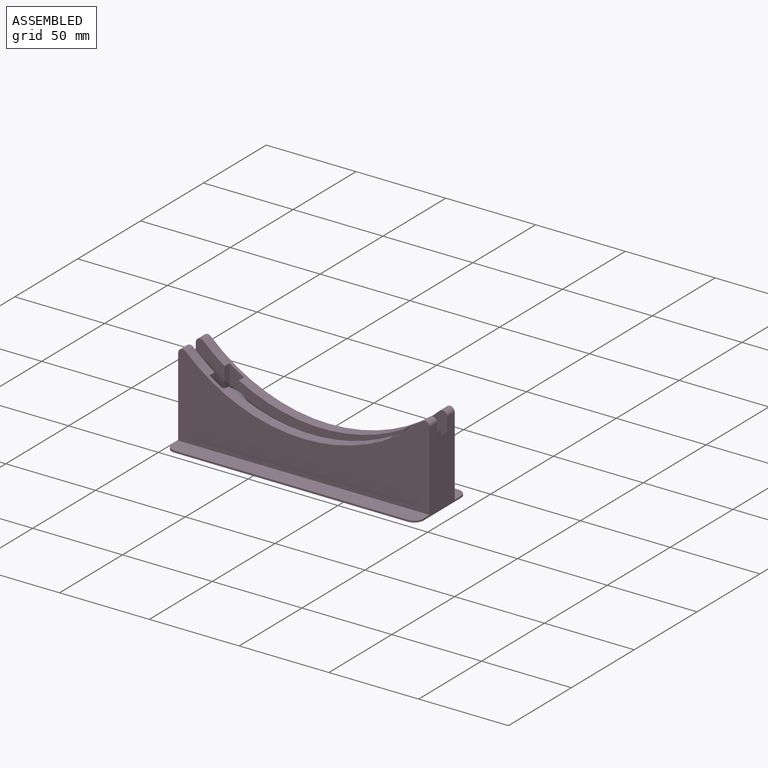
[diagram: assembled view]
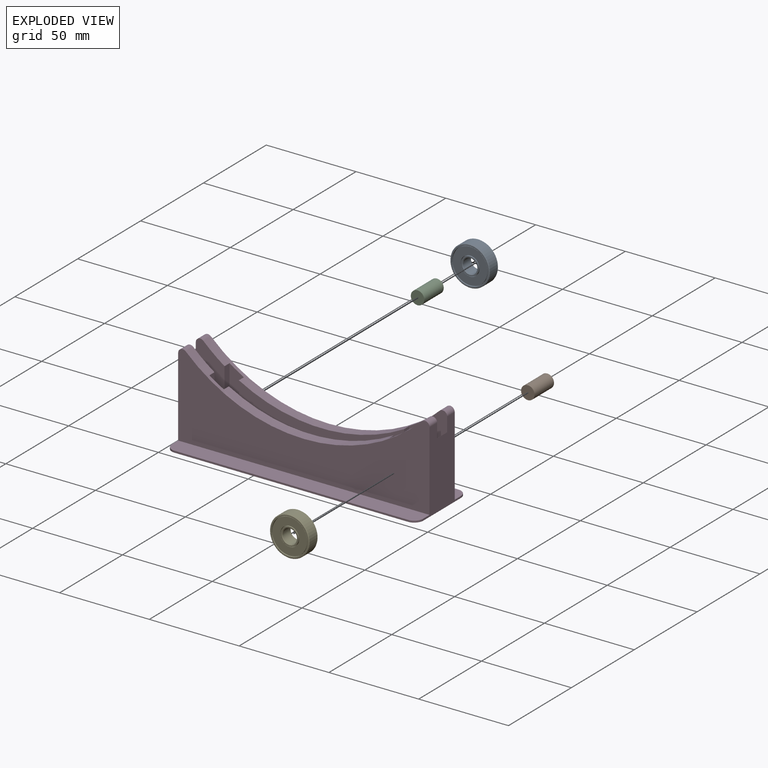
[diagram: exploded view]
GUIDED TOUR — MATED ASSEMBLY (Onshape document b730da43200ee290223126f6, AutoMate assembly b730da43200ee290223126f6_57c0fca6e5a38c80ff8bf6b0_5da7fbd9121deaefb79229ab_default)

This assembly has 5 components, labeled P0..P4 below (a component is one placed occurrence of a part; the same part can appear more than once), held together by 4 mates. A mate is a constraint between two components; its type names the relative motion it leaves free:
  CYLINDRICAL — leaves both rotation about and translation along the listed axis free.
Axis/direction vectors are unit vectors and 'through' points are millimeter coordinates, both in the assembly's world frame.

MATES
  1. CYLINDRICAL "Cylindrical 4": P1 <-> P3, axis (0.000, 1.000, 0.000) through (74.11, 27.88, 2.51) mm
  2. CYLINDRICAL "Cylindrical 3": P2 <-> P3, axis (0.000, 1.000, 0.000) through (-25.89, 27.88, 2.51) mm
  3. CYLINDRICAL "Cylindrical 1": P0 <-> P3, axis (0.000, 1.000, 0.000) through (-25.89, 23.88, 2.51) mm
  4. CYLINDRICAL "Cylindrical 2": P4 <-> P3, axis (0.000, -1.000, 0.000) through (74.11, 15.88, 2.51) mm

ASSEMBLY ORDER
  1. P3 — the base component [order verified]
  2. P4 [order verified]
  3. P0 [order verified]
  4. P2 [order verified]
  5. P1 [order verified]
Order-tag legend:
  [order verified] — this step's position reverses a verified removal order: the component was checked to insert without passing through the ones already placed.

Of the 5 components, 3 carry the full construction recipe — the FeatureScript program that regenerates the part's solid from scratch; the rest are supplied as boundary geometry only.
Each toured component is shown spotlighted twice — in the assembled view, then in the exploded view, where a leader line traces a displaced component back to its assembled socket (saturated green if recipe-attached, orange if geometry-only; every other component desaturated gray) — followed by its recipe or geometry summary and the mates that hold it.
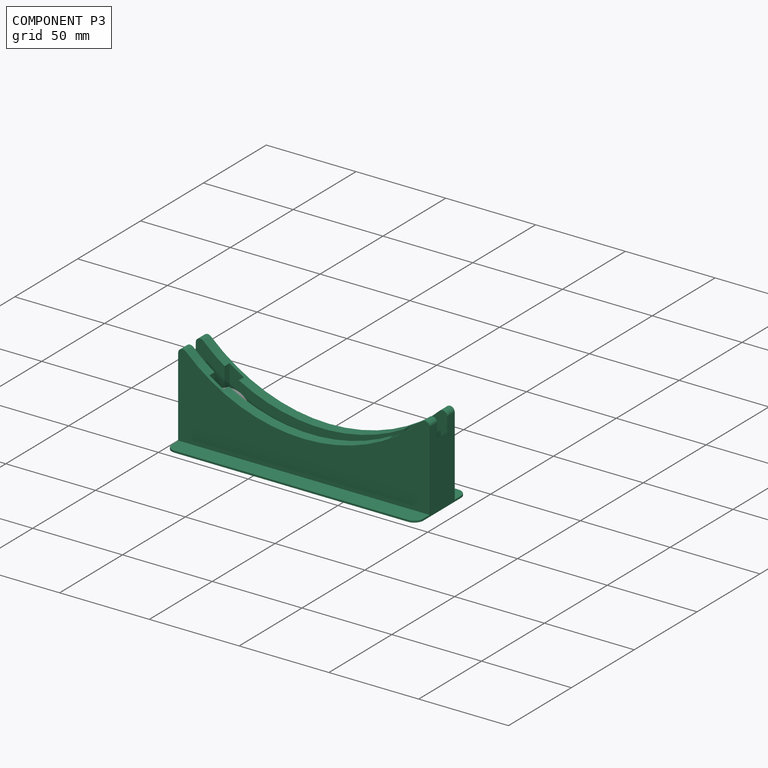
[diagram: component P3 — assembled]
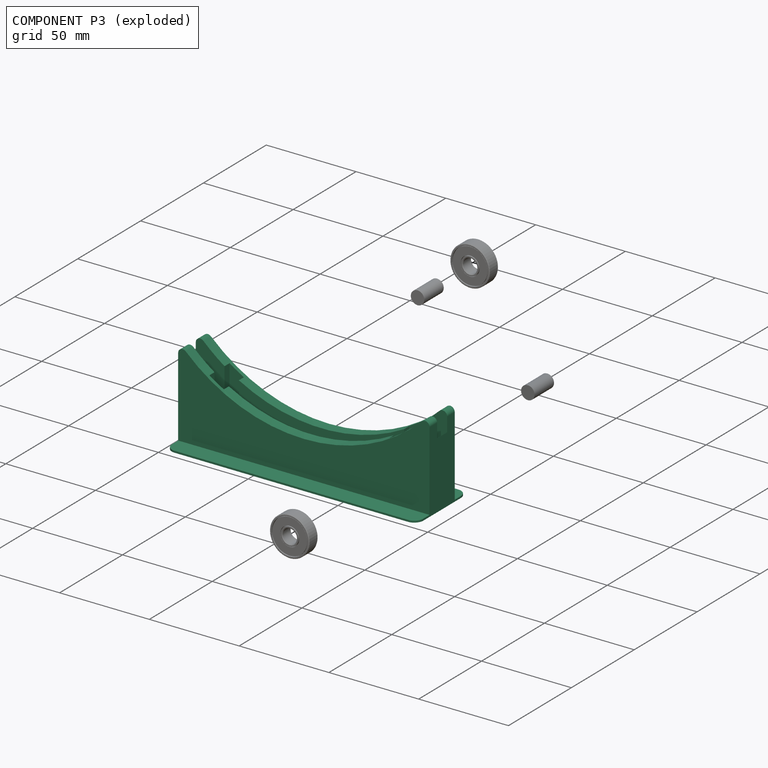
[diagram: component P3 — exploded]
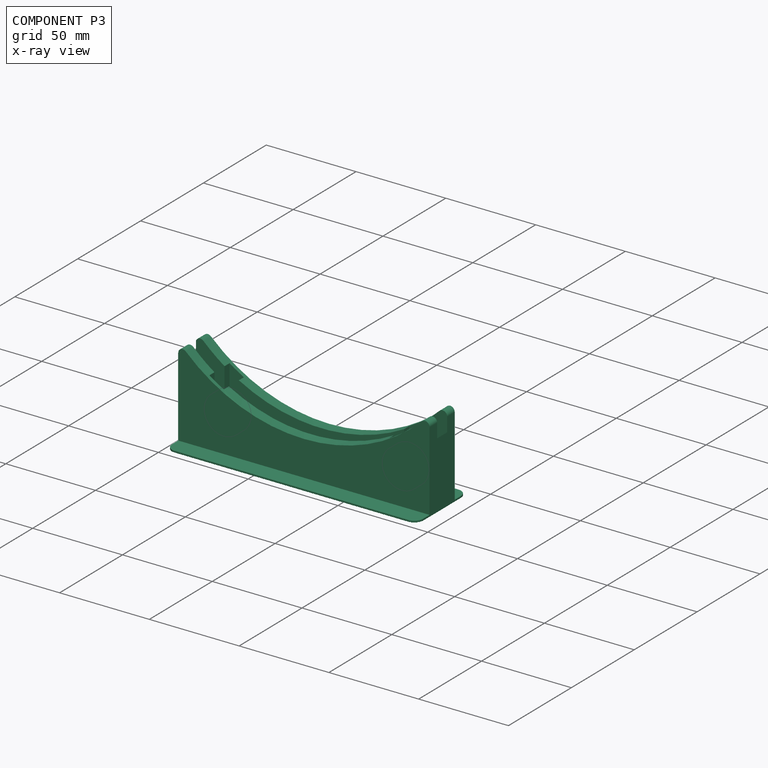
[diagram: component P3 — x-ray view]
COMPONENT P3 — recipe-attached (CADFS 00260634, mesh-verified: the recipe's output STEP matches this component's geometry to below the mesh-comparison resolution (tessellation chordal tolerance ~0.23 mm)).
Held by: CYLINDRICAL mate "Cylindrical 4" to P1; CYLINDRICAL mate "Cylindrical 3" to P2; CYLINDRICAL mate "Cylindrical 1" to P0; CYLINDRICAL mate "Cylindrical 2" to P4.
Construction recipe (FeatureScript — the CAD program that rebuilds this solid; sketch coordinates are in the units given by the * unit suffixes, e.g. mm):

FeatureScript 1511;
import(path : "onshape/std/geometry.fs", version : "1511.0");
import(path : "onshape/std/common.fs", version : "1511.0");
const mm = millimeter;
const VERTEX = EntityType.VERTEX;
const EDGE = EntityType.EDGE;
const FACE = EntityType.FACE;
const BODY = EntityType.BODY;
function v(x, y){return vector(x, y);}
function OD(order){return orderDisambiguation(order);}
function OSD(set){return originalSetDisambiguation(set);}
function TD(topology){return topologyDisambiguation(topology);}
function TDD(query){return trueDependencyDisambiguation(query);}
function sQuery(a, b, c) {return sketchEntityQuery(a, b, c);}

annotation { "Feature Type Name" : "Feature", "Feature Type Description" : "" }
export const myFeature = defineFeature(function(context is Context, id is Id, definition is map)
    precondition{}
    {
        {
            var Q0;
            Q0=qCreatedBy(makeId("Front.planeOp"),FACE);
            var sketch = newSketch(context, id + "F0", { "sketchPlane" : qUnion([Q0])});
            skCircle(sketch, "E0", {"center": v(0, 115) * mm, "radius": 100 * mm, "construction": true});
            skLineSegment(sketch, "E1.top", {"start": v(-70, 0) * mm, "end": v(70, 0) * mm});
            skLineSegment(sketch, "E1.left", {"start": v(-70, 50.77) * mm, "end": v(-70, 0) * mm});
            skLineSegment(sketch, "E1.right", {"start": v(70, 50.77) * mm, "end": v(70, 0) * mm});
            skPoint(sketch, "E1.middle", {"position": v(0, 25.39) * mm});
            skArc(sketch, "E2", {"start": v(-70, 50.77) * mm, "mid": v(0, 20) * mm, "end": v(70, 50.77) * mm});
            skCircle(sketch, "E3", {"center": v(-50, 15.9) * mm, "radius": 11 * mm, "construction": true});
            skSolve(sketch);
        }
        {
            var Q0;
            Q0=makeQuery(id+"F0.imprint","IMPRINT",FACE,{"disambiguationData":[TD([[makeQuery(id+"F0.imprint","IMPRINT",EDGE,{"derivedFrom":sQuery(id+"F0.wireOp",EDGE,"E1.top")}),1.0]])]});
            extrude(context, id + "F1", {"entities" : qUnion([Q0]), "endBound" : BoundingType.SYMMETRIC, "depth" : 20 * mm, "hasSecondDirection" : true, "secondDirectionOppositeDirection" : true, "secondDirectionDepth" : 7.5 * mm});
        }
        {
            var Q0;
            Q0=qCreatedBy(makeId("Front.planeOp"),FACE);
            var sketch = newSketch(context, id + "F2", { "sketchPlane" : qUnion([Q0])});
            skCircle(sketch, "E4", {"center": v(0, 115) * mm, "radius": 100 * mm, "construction": true});
            skCircle(sketch, "E5", {"center": v(0, 115) * mm, "radius": 105 * mm});
            skSolve(sketch);
        }
        {
            var Q0;
            Q0=makeQuery(id+"F2.imprint","IMPRINT",FACE,{"disambiguationData":[TD([[makeQuery(id+"F2.imprint","IMPRINT",EDGE,{"derivedFrom":sQuery(id+"F2.wireOp",EDGE,"E5")}),1.0]])]});
            extrude(context, id + "F3", {"entities" : qUnion([Q0]), "operationType" : NewBodyOperationType.REMOVE, "oppositeDirection" : true, "depth" : 4 * mm, "hasSecondDirection" : true, "secondDirectionOppositeDirection" : false, "secondDirectionDepth" : 4 * mm});
        }
        {
            var Q0;
            {var subQ0=sQuery(id+"F0.wireOp",EDGE,"E2");var subQ1=sQuery(id+"F0.wireOp",EDGE,"E1.left");Q0=makeQuery(id+"F3.boolean.opBoolean","SPLIT",EDGE,{"disambiguationData":[TD([makeQuery(id+"F3.opExtrude","CAP_FACE",FACE,{"disambiguationData":[OSD([sQuery(id+"F2.wireOp",EDGE,"E5")])],"isStart":false})])],"derivedFrom":makeQuery(id+"F1.opExtrude","SWEPT_EDGE",EDGE,{"disambiguationData":[OSD([subQ1,subQ0])]})});}
            var Q1;
            {var subQ0=sQuery(id+"F0.wireOp",EDGE,"E2");var subQ1=sQuery(id+"F0.wireOp",EDGE,"E1.left");Q1=makeQuery(id+"F3.boolean.opBoolean","SPLIT",EDGE,{"disambiguationData":[TD([makeQuery(id+"F3.opExtrude","CAP_FACE",FACE,{"disambiguationData":[OSD([sQuery(id+"F2.wireOp",EDGE,"E5")])],"isStart":true})])],"derivedFrom":makeQuery(id+"F1.opExtrude","SWEPT_EDGE",EDGE,{"disambiguationData":[OSD([subQ1,subQ0])]})});}
            var Q2;
            {var subQ0=sQuery(id+"F0.wireOp",EDGE,"E2");var subQ1=sQuery(id+"F0.wireOp",EDGE,"E1.right");Q2=makeQuery(id+"F3.boolean.opBoolean","SPLIT",EDGE,{"disambiguationData":[TD([makeQuery(id+"F3.opExtrude","CAP_FACE",FACE,{"disambiguationData":[OSD([sQuery(id+"F2.wireOp",EDGE,"E5")])],"isStart":false})])],"derivedFrom":makeQuery(id+"F1.opExtrude","SWEPT_EDGE",EDGE,{"disambiguationData":[OSD([subQ1,subQ0])]})});}
            var Q3;
            {var subQ0=sQuery(id+"F0.wireOp",EDGE,"E2");var subQ1=sQuery(id+"F0.wireOp",EDGE,"E1.right");Q3=makeQuery(id+"F3.boolean.opBoolean","SPLIT",EDGE,{"disambiguationData":[TD([makeQuery(id+"F3.opExtrude","CAP_FACE",FACE,{"disambiguationData":[OSD([sQuery(id+"F2.wireOp",EDGE,"E5")])],"isStart":true})])],"derivedFrom":makeQuery(id+"F1.opExtrude","SWEPT_EDGE",EDGE,{"disambiguationData":[OSD([subQ1,subQ0])]})});}
            fillet(context, id + "F4", {"entities" : qUnion([Q0, Q1, Q2, Q3]), "radius" : 2.5 * mm, "tangentPropagation" : true, "allowEdgeOverflow" : false});
        }
        {
            var Q0;
            Q0=qCreatedBy(makeId("Front.planeOp"),FACE);
            var sketch = newSketch(context, id + "F5", { "sketchPlane" : qUnion([Q0])});
            skArc(sketch, "E6", {"start": v(-62, 15.9) * mm, "mid": v(-50, 3.9) * mm, "end": v(-38, 15.9) * mm});
            skCircle(sketch, "E7", {"center": v(0, 115) * mm, "radius": 100 * mm, "construction": true});
            skCircle(sketch, "E8", {"center": v(-50, 15.9) * mm, "radius": 11 * mm, "construction": true});
            skLineSegment(sketch, "E9.bottom", {"start": v(-62, 15.9) * mm, "end": v(-61, 15.9) * mm});
            skLineSegment(sketch, "E9.top", {"start": v(-62, 43.02) * mm, "end": v(-38, 43.02) * mm});
            skLineSegment(sketch, "E9.left", {"start": v(-62, 15.9) * mm, "end": v(-62, 43.02) * mm});
            skLineSegment(sketch, "E9.right", {"start": v(-38, 15.9) * mm, "end": v(-38, 43.02) * mm});
            skPoint(sketch, "E9.middle", {"position": v(-50, 29.46) * mm});
            skLineSegment(sketch, "E10.trimOffspring", {"start": v(-39, 15.9) * mm, "end": v(-38, 15.9) * mm});
            skLineSegment(sketch, "E11.MirrorCS", {"start": v(39, 15.9) * mm, "end": v(38, 15.9) * mm});
            skLineSegment(sketch, "E12.MirrorCS", {"start": v(62, 15.9) * mm, "end": v(61, 15.9) * mm});
            skArc(sketch, "E13.MirrorCS", {"start": v(62, 15.9) * mm, "mid": v(50, 3.9) * mm, "end": v(38, 15.9) * mm});
            skPoint(sketch, "E14.MirrorP", {"position": v(50, 29.46) * mm});
            skLineSegment(sketch, "E15.MirrorCS", {"start": v(38, 15.9) * mm, "end": v(38, 43.02) * mm});
            skLineSegment(sketch, "E16.MirrorCS", {"start": v(62, 43.02) * mm, "end": v(38, 43.02) * mm});
            skLineSegment(sketch, "E17.MirrorCS", {"start": v(62, 15.9) * mm, "end": v(62, 43.02) * mm});
            skCircle(sketch, "E18.MirrorC", {"center": v(50, 15.9) * mm, "radius": 11 * mm, "construction": true});
            skSolve(sketch);
        }
        {
            var Q0;
            Q0 = qSketchRegion(id + "F5", true);
            extrude(context, id + "F6", {"entities" : qUnion([Q0]), "operationType" : NewBodyOperationType.REMOVE, "endBound" : BoundingType.SYMMETRIC, "oppositeDirection" : true, "depth" : 8 * mm});
        }
        {
            var Q0;
            Q0=makeQuery(id+"F1.opExtrude","CAP_FACE",FACE,{"disambiguationData":[OSD([sQuery(id+"F0.wireOp",EDGE,"E1.top"),sQuery(id+"F0.wireOp",EDGE,"E1.left"),sQuery(id+"F0.wireOp",EDGE,"E1.right"),sQuery(id+"F0.wireOp",EDGE,"E2")])],"isStart":false});
            var sketch = newSketch(context, id + "F7", { "sketchPlane" : qUnion([Q0])});
            skArc(sketch, "E19", {"start": v(-54, 15.9) * mm, "mid": v(-50, 11.9) * mm, "end": v(-46, 15.9) * mm});
            skPoint(sketch, "E20.middle", {"position": v(-50, 26.4) * mm});
            skLineSegment(sketch, "E21", {"start": v(-54, 15.9) * mm, "end": v(-54, 36.84) * mm});
            skLineSegment(sketch, "E22", {"start": v(-54, 36.84) * mm, "end": v(-46, 36.84) * mm});
            skLineSegment(sketch, "E23", {"start": v(-46, 15.9) * mm, "end": v(-46, 36.84) * mm});
            skLineSegment(sketch, "E24.MirrorCS", {"start": v(54, 15.9) * mm, "end": v(54, 36.84) * mm});
            skLineSegment(sketch, "E25.MirrorCS", {"start": v(46, 15.9) * mm, "end": v(46, 36.84) * mm});
            skLineSegment(sketch, "E26.MirrorCS", {"start": v(54, 36.84) * mm, "end": v(46, 36.84) * mm});
            skPoint(sketch, "E27.MirrorP", {"position": v(50, 26.4) * mm});
            skArc(sketch, "E28.MirrorCS", {"start": v(54, 15.9) * mm, "mid": v(50, 11.9) * mm, "end": v(46, 15.9) * mm});
            skSolve(sketch);
        }
        {
            var Q0;
            Q0 = qSketchRegion(id + "F7", true);
            extrude(context, id + "F8", {"entities" : qUnion([Q0]), "operationType" : NewBodyOperationType.REMOVE, "oppositeDirection" : true, "depth" : 18 * mm, "hasSecondDirection" : true, "secondDirectionOppositeDirection" : true, "secondDirectionDepth" : 2 * mm});
        }
        {
            var Q0;
            Q0=qCreatedBy(makeId("Top.planeOp"),FACE);
            var sketch = newSketch(context, id + "F9", { "sketchPlane" : qUnion([Q0])});
            skLineSegment(sketch, "E29.bottom", {"start": v(-70, 20) * mm, "end": v(70, 20) * mm});
            skLineSegment(sketch, "E29.top", {"start": v(-70, -20) * mm, "end": v(70, -20) * mm});
            skLineSegment(sketch, "E29.left", {"start": v(-70, 20) * mm, "end": v(-70, -20) * mm});
            skLineSegment(sketch, "E29.right", {"start": v(70, 20) * mm, "end": v(70, -20) * mm});
            skPoint(sketch, "E29.middle", {"position": v(0, 0) * mm});
            skSolve(sketch);
        }
        {
            var Q0;
            Q0=makeQuery(id+"F9.imprint","IMPRINT",FACE,{"disambiguationData":[TD([[makeQuery(id+"F9.imprint","IMPRINT",EDGE,{"derivedFrom":sQuery(id+"F9.wireOp",EDGE,"E29.bottom")}),-1.0]])]});
            extrude(context, id + "F10", {"entities" : qUnion([Q0]), "operationType" : NewBodyOperationType.ADD, "endBound" : BoundingType.SYMMETRIC, "depth" : 1 * mm});
        }
        {
            var Q0;
            Q0=makeQuery(id+"F10.opExtrude","SWEPT_EDGE",EDGE,{"disambiguationData":[OSD([sQuery(id+"F9.wireOp",EDGE,"E29.top"),sQuery(id+"F9.wireOp",EDGE,"E29.left")])]});
            var Q1;
            Q1=makeQuery(id+"F10.opExtrude","SWEPT_EDGE",EDGE,{"disambiguationData":[OSD([sQuery(id+"F9.wireOp",EDGE,"E29.top"),sQuery(id+"F9.wireOp",EDGE,"E29.right")])]});
            var Q2;
            Q2=makeQuery(id+"F10.opExtrude","SWEPT_EDGE",EDGE,{"disambiguationData":[OSD([sQuery(id+"F9.wireOp",EDGE,"E29.bottom"),sQuery(id+"F9.wireOp",EDGE,"E29.right")])]});
            var Q3;
            Q3=makeQuery(id+"F10.opExtrude","SWEPT_EDGE",EDGE,{"disambiguationData":[OSD([sQuery(id+"F9.wireOp",EDGE,"E29.bottom"),sQuery(id+"F9.wireOp",EDGE,"E29.left")])]});
            fillet(context, id + "F11", {"entities" : qUnion([Q0, Q1, Q2, Q3]), "radius" : 5 * mm, "tangentPropagation" : true, "allowEdgeOverflow" : false});
        }
    });
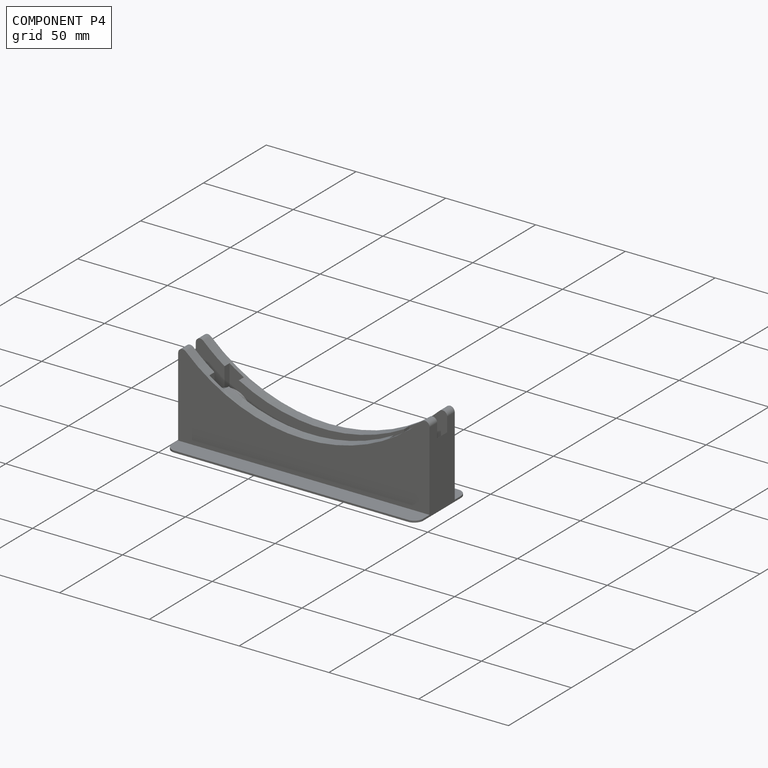
[diagram: component P4 — assembled]
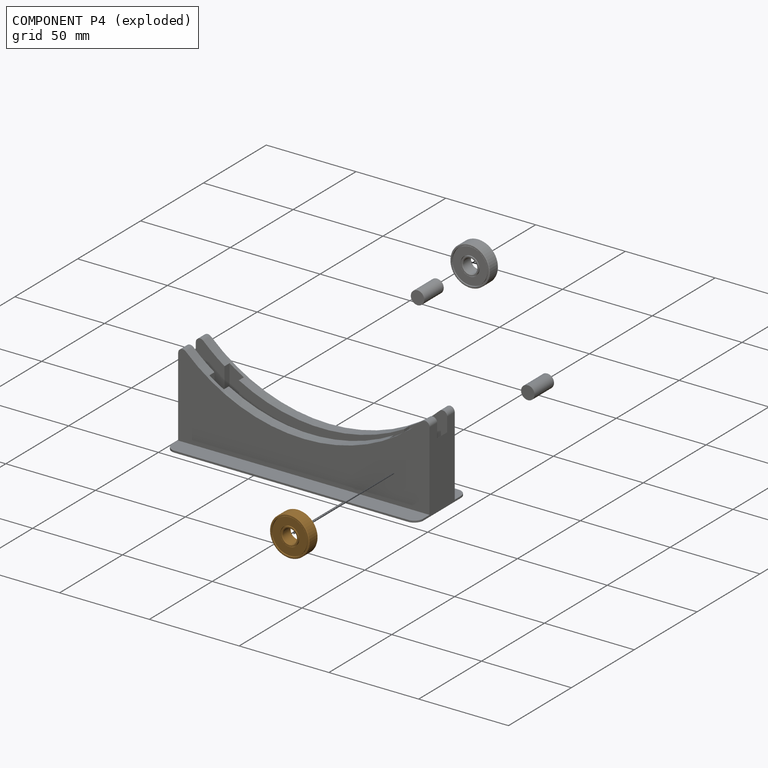
[diagram: component P4 — exploded]
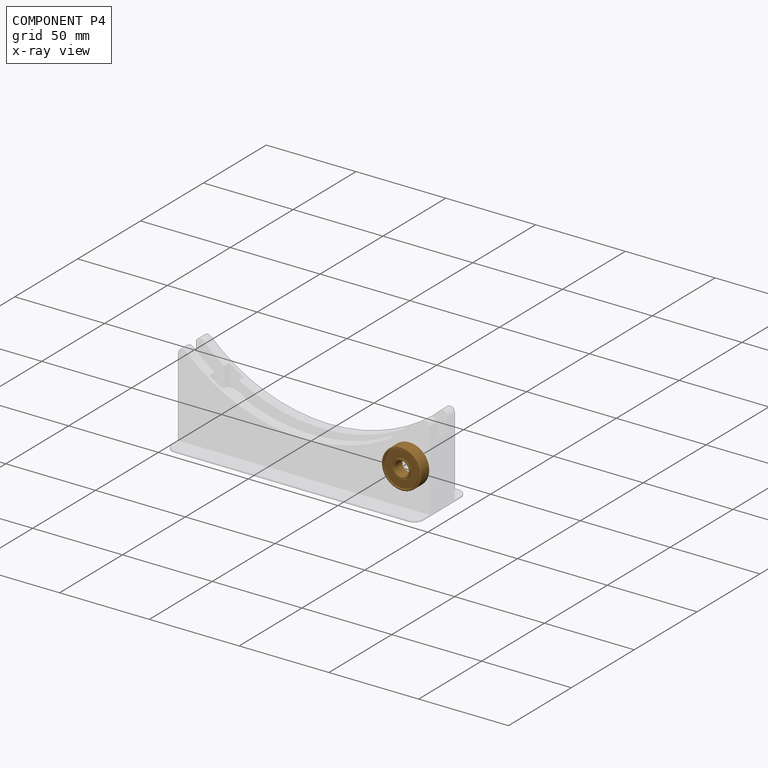
[diagram: component P4 — x-ray view]
COMPONENT P4 — geometry summary (no construction recipe available for this part):
  bounding box: 22.0 x 22.0 x 7.0 mm
  B-rep topology: 1 solid, 32 faces, 104 edges
  volume: 1604 mm^3 (47% of its bounding box)
  symmetry: 2-fold rotationally symmetric about the x axis; revolution-symmetric about the y axis through its bounding-box center; 2-fold rotationally symmetric about the z axis; mirror-symmetric across its x mid-plane, y mid-plane, z mid-plane
Held by: CYLINDRICAL mate "Cylindrical 2" to P3.
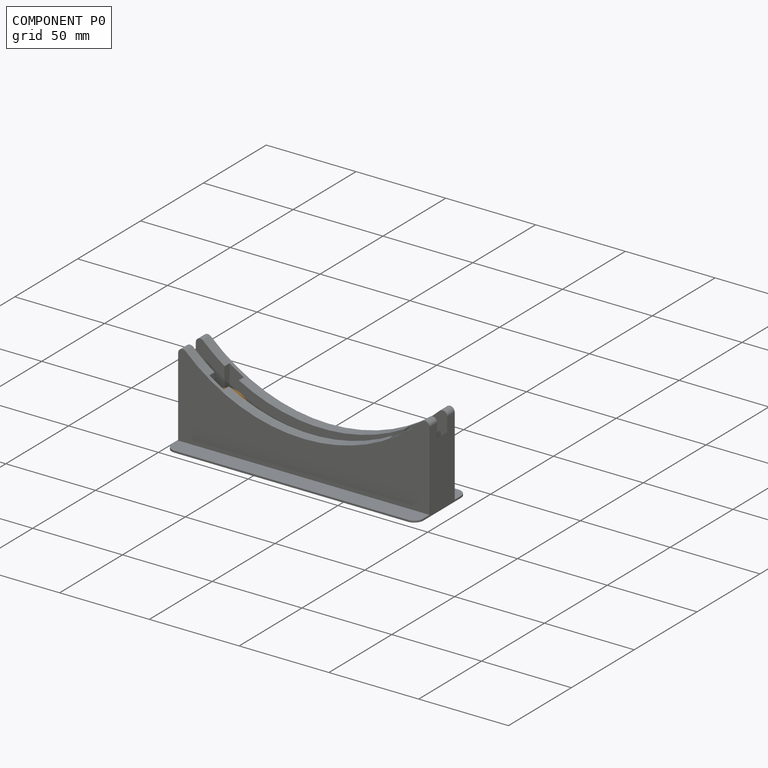
[diagram: component P0 — assembled]
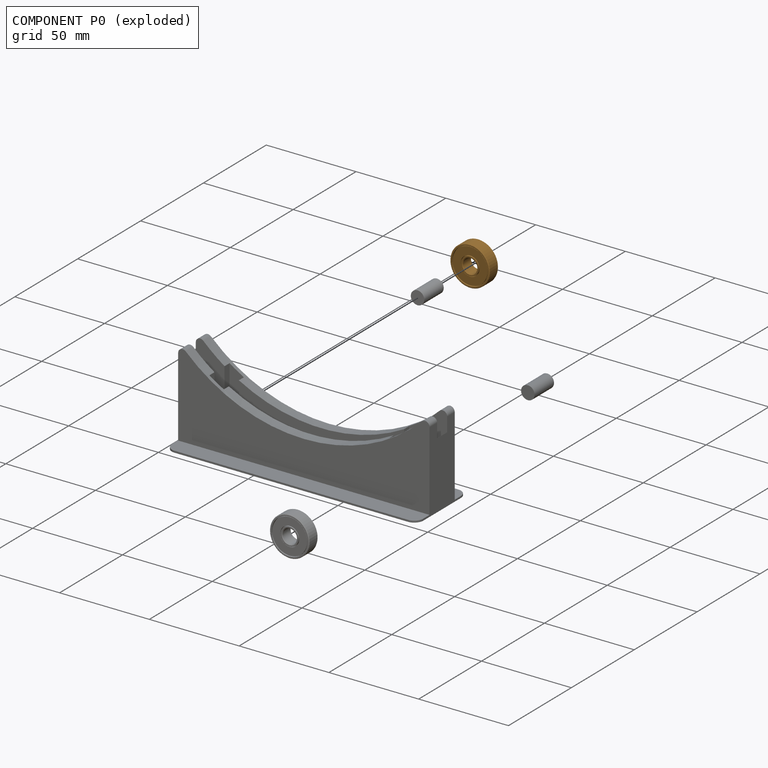
[diagram: component P0 — exploded]
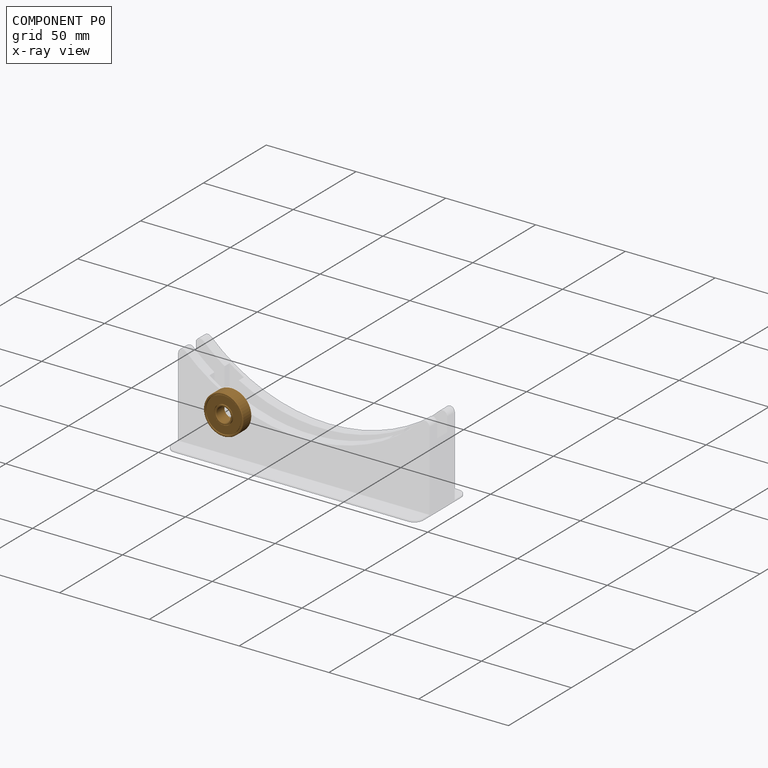
[diagram: component P0 — x-ray view]
COMPONENT P0 — geometry summary (no construction recipe available for this part):
  bounding box: 22.0 x 22.0 x 7.0 mm
  B-rep topology: 1 solid, 32 faces, 104 edges
  volume: 1604 mm^3 (47% of its bounding box)
  symmetry: 2-fold rotationally symmetric about the x axis; revolution-symmetric about the y axis through its bounding-box center; 2-fold rotationally symmetric about the z axis; mirror-symmetric across its x mid-plane, y mid-plane, z mid-plane
Held by: CYLINDRICAL mate "Cylindrical 1" to P3.
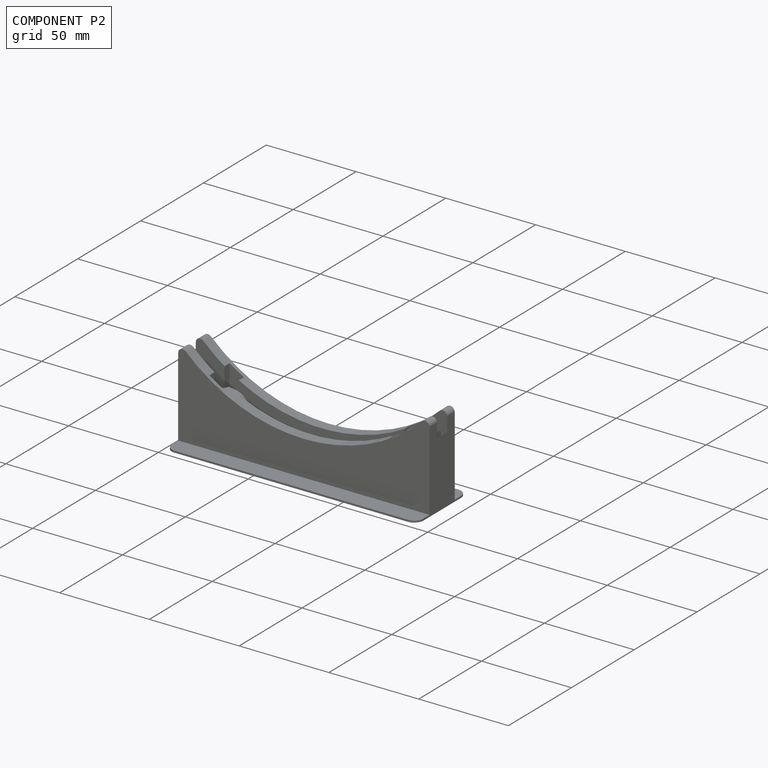
[diagram: component P2 — assembled]
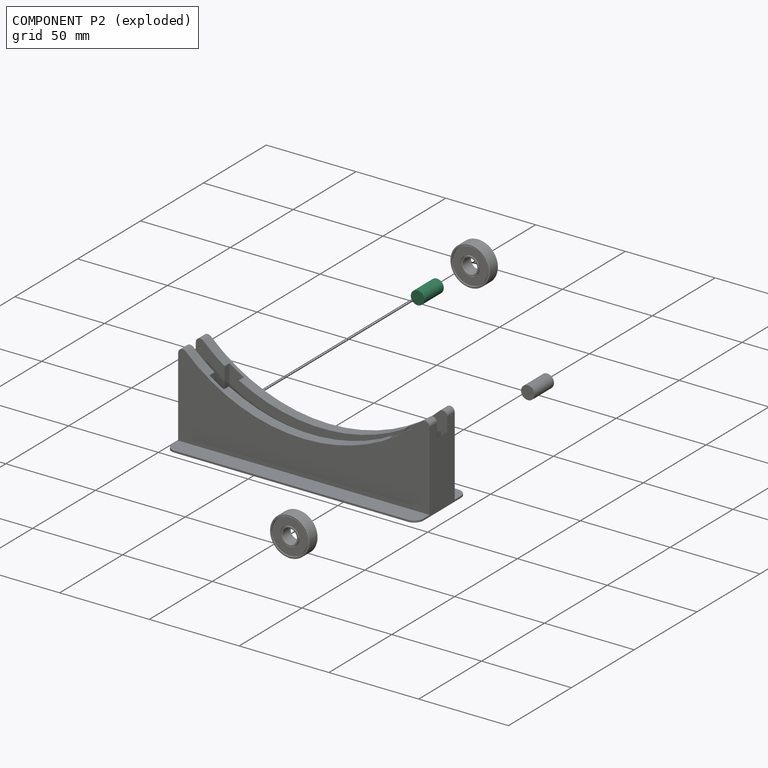
[diagram: component P2 — exploded]
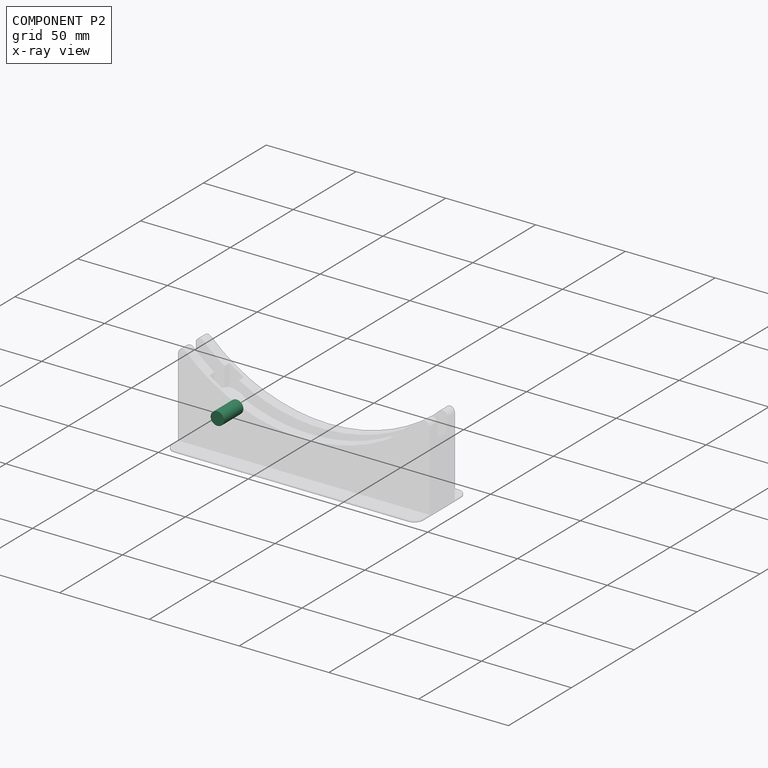
[diagram: component P2 — x-ray view]
COMPONENT P2 — same part as P1 (CADFS 00260635); its construction recipe is shown at P1.
Held by: CYLINDRICAL mate "Cylindrical 3" to P3.
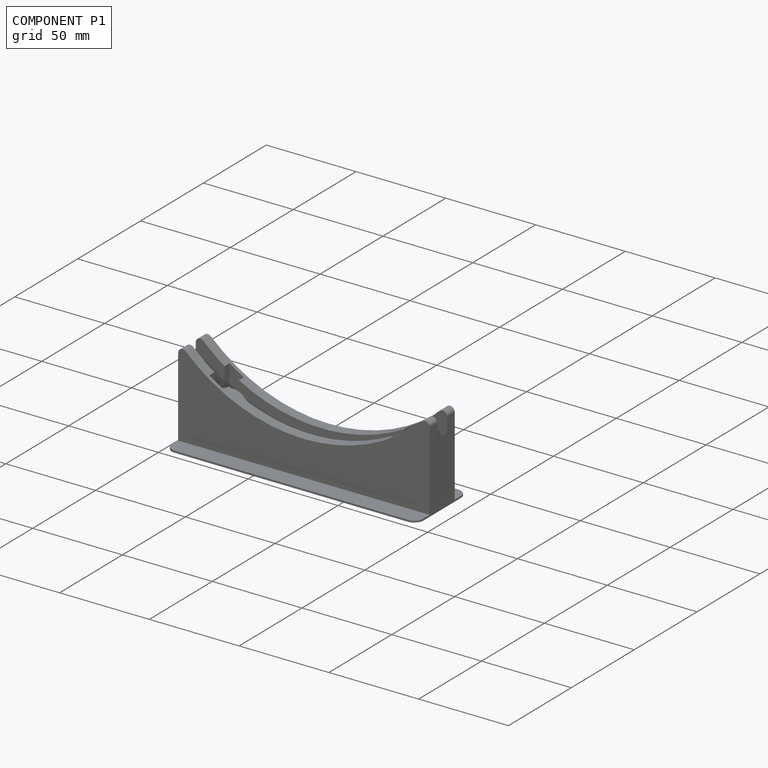
[diagram: component P1 — assembled]
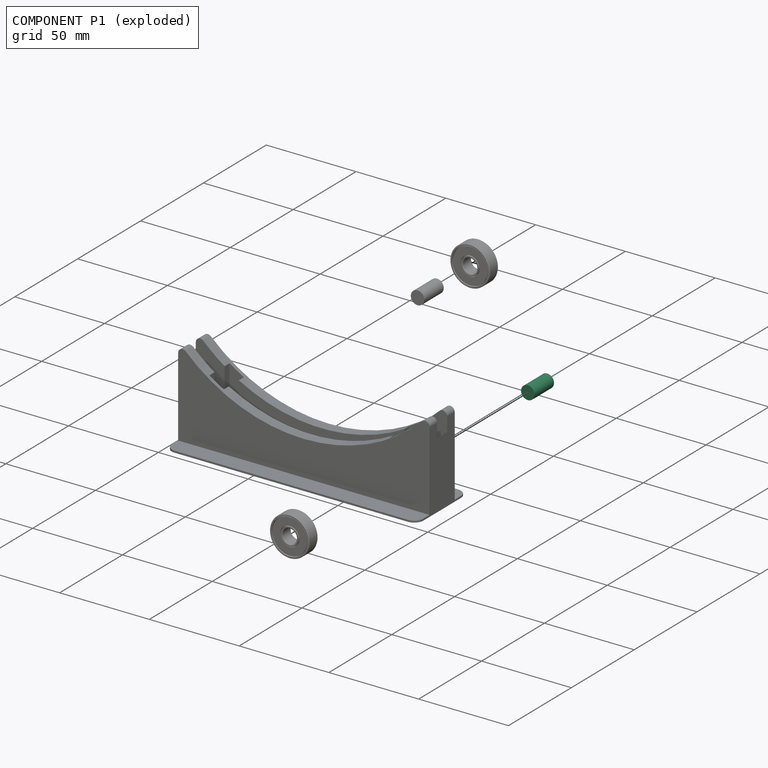
[diagram: component P1 — exploded]
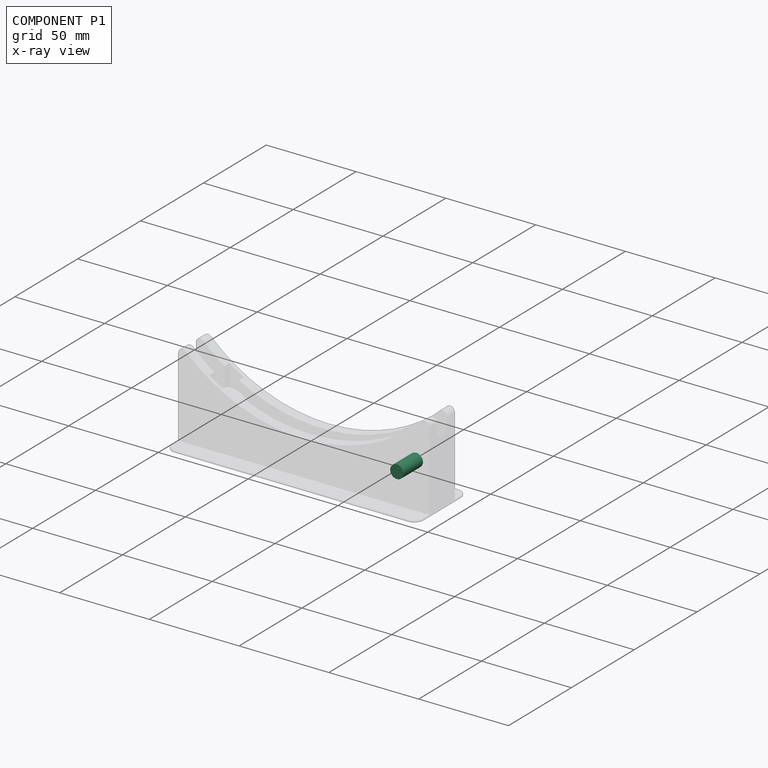
[diagram: component P1 — x-ray view]
COMPONENT P1 — recipe-attached (CADFS 00260635, mesh-verified: the recipe's output STEP matches this component's geometry to below the mesh-comparison resolution (tessellation chordal tolerance ~0.0282 mm)).
Held by: CYLINDRICAL mate "Cylindrical 4" to P3.
Construction recipe (FeatureScript — the CAD program that rebuilds this solid; sketch coordinates are in the units given by the * unit suffixes, e.g. mm):

FeatureScript 1511;
import(path : "onshape/std/geometry.fs", version : "1511.0");
import(path : "onshape/std/common.fs", version : "1511.0");
const mm = millimeter;
const VERTEX = EntityType.VERTEX;
const EDGE = EntityType.EDGE;
const FACE = EntityType.FACE;
const BODY = EntityType.BODY;
function v(x, y){return vector(x, y);}
function OD(order){return orderDisambiguation(order);}
function OSD(set){return originalSetDisambiguation(set);}
function TD(topology){return topologyDisambiguation(topology);}
function TDD(query){return trueDependencyDisambiguation(query);}
function sQuery(a, b, c) {return sketchEntityQuery(a, b, c);}

annotation { "Feature Type Name" : "Feature", "Feature Type Description" : "" }
export const myFeature = defineFeature(function(context is Context, id is Id, definition is map)
    precondition{}
    {
        {
            var Q0;
            Q0=qCreatedBy(makeId("Top.planeOp"),FACE);
            var sketch = newSketch(context, id + "F0", { "sketchPlane" : qUnion([Q0])});
            skCircle(sketch, "E0", {"center": v(0, 0) * mm, "radius": 3.75 * mm});
            skSolve(sketch);
        }
        {
            var Q0;
            Q0 = qSketchRegion(id + "F0", true);
            extrude(context, id + "F1", {"entities" : qUnion([Q0]), "depth" : 15.5 * mm});
        }
    });
PROVENANCE & LICENSES
Assembly (occurrences, transforms, mates, per-part STEP geometry): AutoMate dataset, Zenodo record 7776208, CC0.
Construction recipes: CADFS (HuggingFace VladPyatov/CADFS, CC-BY-4.0, layered over the ABC dataset), FeatureScript reconstruction programs keyed by ABC model id.
Join: ABC meta listings map ABC model id -> Onshape documentId; within a shared document, parts are matched by geometric signature (bounding-box dims + volume at 0.1% relative tolerance, exact B-rep face/solid counts).
Verification: 3 of this assembly's 5 components carry a recipe attachment, and every attachment is mesh-verified: the CADFS STEP and the AutoMate member STEP were compared as meshes in their shared local frame (symmetric sampled-point-to-mesh distance); worst across the 3 attachments: below the mesh-comparison resolution (tessellation chordal tolerance ~0.23 mm) on a 153 mm part.
Renders: orthographic iso camera (az 35 / el 25); the floor grid conveys scale (grid pitch printed in each image; no ruler). In the exploded view each component is displaced by its stored offset vector: the offsets alone carry the explosion direction (mate normal/axis signs are not orientation cues and do not encode it), and separation distances are assigned per mate-chain, not proportionally to assembly-order depth.
